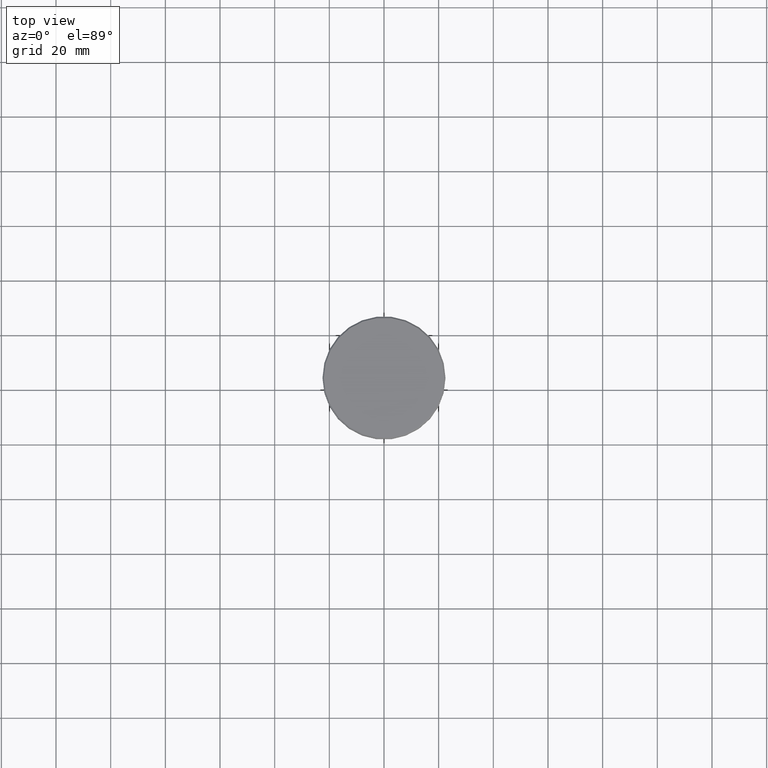
[diagram: clean part render]
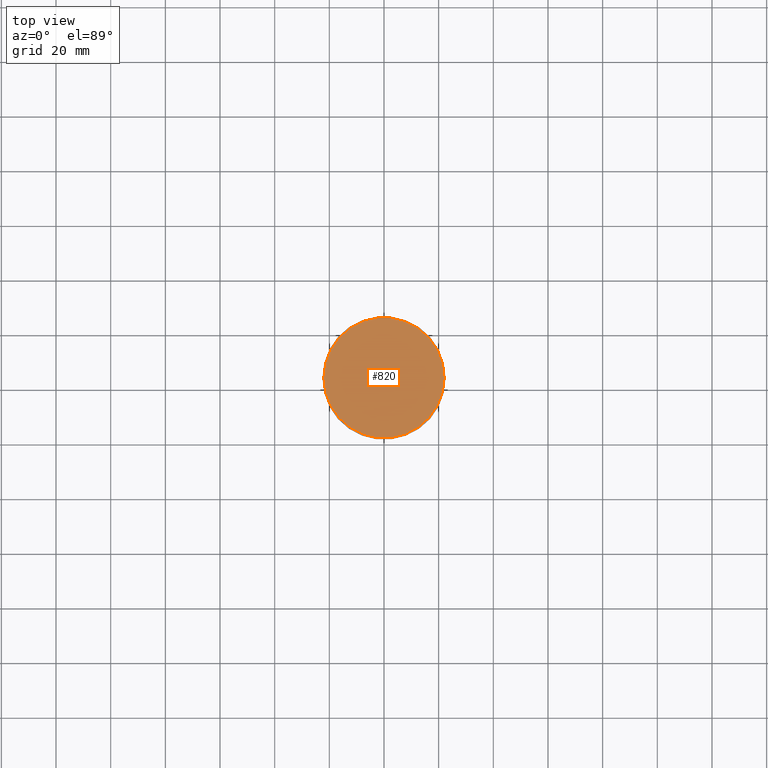
[diagram: same view with one face highlighted and labeled with its STEP entity id]
A machine part, top view. The second image highlights one B-rep face of the part: STEP entity #820.
In plain terms, the highlighted planar face has unit normal (0, -0, 1).
Its self-contained STEP definition (entity closure, byte-faithful):
#202 = CARTESIAN_POINT ( 'NONE',  ( -21.99999999999990763, 0.000000000000000000, 0.000000000000000000 ) ) ;
#221 = VERTEX_POINT ( 'NONE', #846 ) ;
#390 = EDGE_CURVE ( 'NONE', #221, #764, #737, .T. ) ;
#404 = AXIS2_PLACEMENT_3D ( 'NONE', #681, #977, #505 ) ;
#435 = ORIENTED_EDGE ( 'NONE', *, *, #390, .T. ) ;
#449 = ORIENTED_EDGE ( 'NONE', *, *, #509, .T. ) ;
#455 = DIRECTION ( 'NONE',  ( 1.000000000000000000, 0.000000000000000000, 0.000000000000000000 ) ) ;
#505 = DIRECTION ( 'NONE',  ( 1.000000000000000000, 0.000000000000000000, 0.000000000000000000 ) ) ;
#509 = EDGE_CURVE ( 'NONE', #764, #221, #1068, .T. ) ;
#515 = PLANE ( 'NONE',  #404 ) ;
#681 = CARTESIAN_POINT ( 'NONE',  ( 0.000000000000000000, 0.000000000000000000, 0.000000000000000000 ) ) ;
#714 = CARTESIAN_POINT ( 'NONE',  ( 0.000000000000000000, 0.000000000000000000, 0.000000000000000000 ) ) ;
#737 = CIRCLE ( 'NONE', #970, 21.99999999999990763 ) ;
#764 = VERTEX_POINT ( 'NONE', #202 ) ;
#820 = ADVANCED_FACE ( 'NONE', ( #1069 ), #515, .T. ) ;
#846 = CARTESIAN_POINT ( 'NONE',  ( 21.99999999999990763, 2.724839128102855074E-15, 0.000000000000000000 ) ) ;
#884 = DIRECTION ( 'NONE',  ( 1.000000000000000000, 0.000000000000000000, 0.000000000000000000 ) ) ;
#945 = EDGE_LOOP ( 'NONE', ( #449, #435 ) ) ;
#970 = AXIS2_PLACEMENT_3D ( 'NONE', #1175, #1055, #884 ) ;
#977 = DIRECTION ( 'NONE',  ( 0.000000000000000000, -0.000000000000000000, 1.000000000000000000 ) ) ;
#996 = DIRECTION ( 'NONE',  ( -0.000000000000000000, -0.000000000000000000, 1.000000000000000000 ) ) ;
#1055 = DIRECTION ( 'NONE',  ( -0.000000000000000000, -0.000000000000000000, 1.000000000000000000 ) ) ;
#1068 = CIRCLE ( 'NONE', #1131, 21.99999999999990763 ) ;
#1069 = FACE_OUTER_BOUND ( 'NONE', #945, .T. ) ;
#1131 = AXIS2_PLACEMENT_3D ( 'NONE', #714, #996, #455 ) ;
#1175 = CARTESIAN_POINT ( 'NONE',  ( 0.000000000000000000, 0.000000000000000000, 0.000000000000000000 ) ) ;